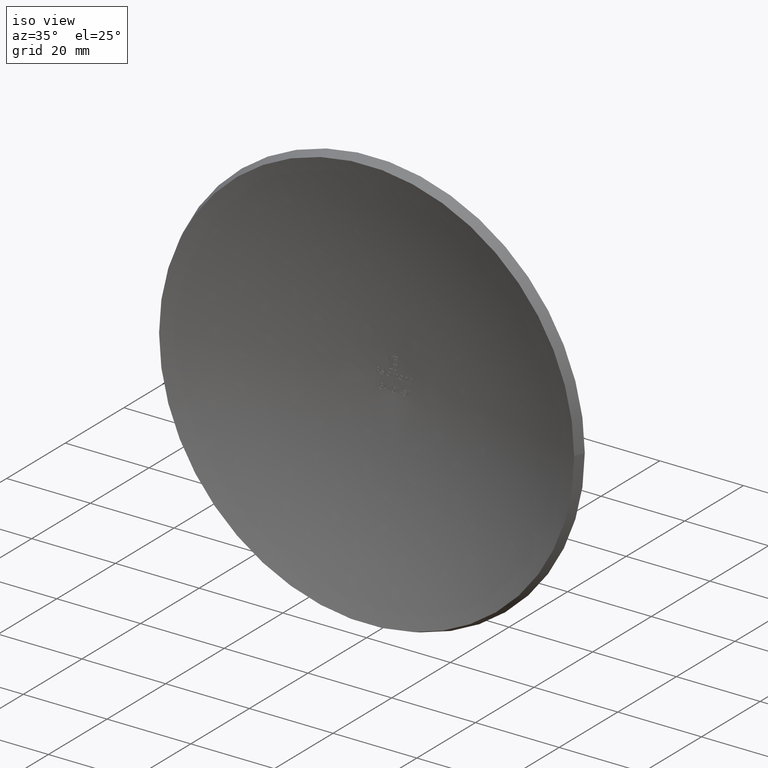
[diagram: clean part render]
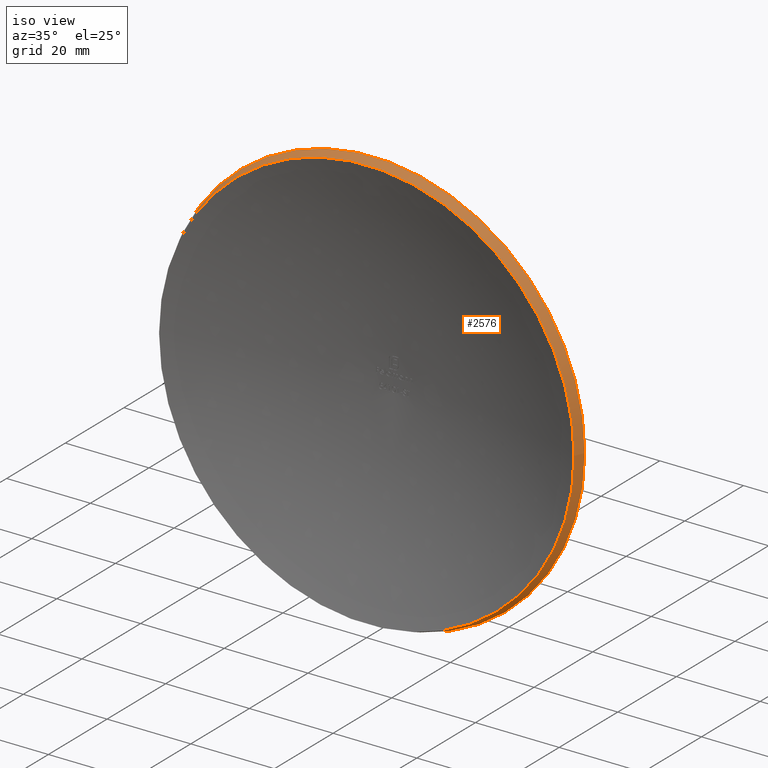
[diagram: same view with one face highlighted and labeled with its STEP entity id]
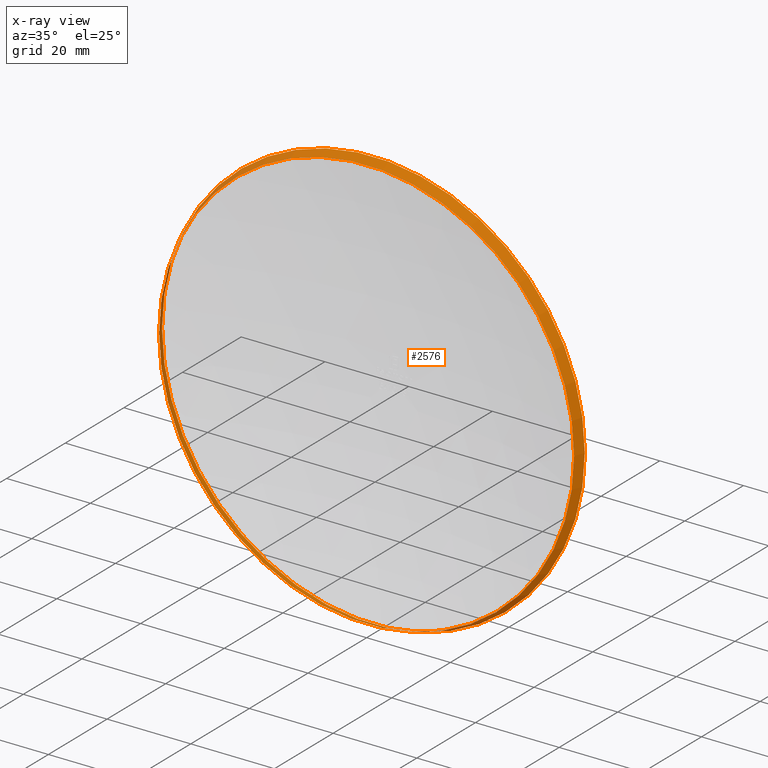
[diagram: x-ray of the same camera — body ghosted, the highlighted face saturated]
A machine part, iso view. The second image highlights one B-rep face of the part: STEP entity #2576.
The next image is the same camera in x-ray: the body ghosted, the highlighted face saturated — about 0% of this face is hidden behind the body in this view.
In plain terms, the highlighted conical surface has half-angle 21.696 deg.
Its self-contained STEP definition (entity closure, byte-faithful):
#288 = AXIS2_PLACEMENT_3D ( 'NONE', #4263, #10443, #2474 ) ;
#328 = ORIENTED_EDGE ( 'NONE', *, *, #2075, .F. ) ;
#645 = AXIS2_PLACEMENT_3D ( 'NONE', #4609, #1123, #1957 ) ;
#1123 = DIRECTION ( 'NONE',  ( -3.284645482289417784E-15, 1.000000000000000000, 0.000000000000000000 ) ) ;
#1305 = VERTEX_POINT ( 'NONE', #3600 ) ;
#1957 = DIRECTION ( 'NONE',  ( -1.000000000000000000, -3.284645482289417784E-15, 0.000000000000000000 ) ) ;
#2047 = CARTESIAN_POINT ( 'NONE',  ( 3.941574578768343890E-14, -1.353084311261909534E-13, 0.000000000000000000 ) ) ;
#2075 = EDGE_CURVE ( 'NONE', #10582, #10582, #6191, .T. ) ;
#2474 = DIRECTION ( 'NONE',  ( 1.000000000000000000, 3.280516672391784963E-15, 0.000000000000000000 ) ) ;
#2576 = ADVANCED_FACE ( 'NONE', ( #4506, #6618 ), #3263, .T. ) ;
#2913 = EDGE_LOOP ( 'NONE', ( #328 ) ) ;
#3263 = CONICAL_SURFACE ( 'NONE', #645, 49.57580810414328454, 0.3786611108749892152 ) ;
#3504 = AXIS2_PLACEMENT_3D ( 'NONE', #2047, #4667, #8244 ) ;
#3525 = CIRCLE ( 'NONE', #288, 50.49999999999997868 ) ;
#3600 = CARTESIAN_POINT ( 'NONE',  ( 50.50000000000000711, 2.322901061094261088, 0.000000000000000000 ) ) ;
#4263 = CARTESIAN_POINT ( 'NONE',  ( 3.178583931155497967E-14, 2.322901061094095443, 0.000000000000000000 ) ) ;
#4506 = FACE_OUTER_BOUND ( 'NONE', #5142, .T. ) ;
#4609 = CARTESIAN_POINT ( 'NONE',  ( 3.941574578768343890E-14, -1.353084311261909534E-13, 0.000000000000000000 ) ) ;
#4667 = DIRECTION ( 'NONE',  ( 3.284645482289417784E-15, -1.000000000000000000, -0.000000000000000000 ) ) ;
#4910 = ORIENTED_EDGE ( 'NONE', *, *, #8678, .T. ) ;
#5142 = EDGE_LOOP ( 'NONE', ( #4910 ) ) ;
#6191 = CIRCLE ( 'NONE', #3504, 49.57580810414329164 ) ;
#6618 = FACE_BOUND ( 'NONE', #2913, .T. ) ;
#7235 = CARTESIAN_POINT ( 'NONE',  ( 49.57580810414333428, 2.753052299393041995E-14, 0.000000000000000000 ) ) ;
#8244 = DIRECTION ( 'NONE',  ( 1.000000000000000000, 3.284645482289417784E-15, 0.000000000000000000 ) ) ;
#8678 = EDGE_CURVE ( 'NONE', #1305, #1305, #3525, .T. ) ;
#10443 = DIRECTION ( 'NONE',  ( 3.284645482289417784E-15, -1.000000000000000000, -0.000000000000000000 ) ) ;
#10582 = VERTEX_POINT ( 'NONE', #7235 ) ;